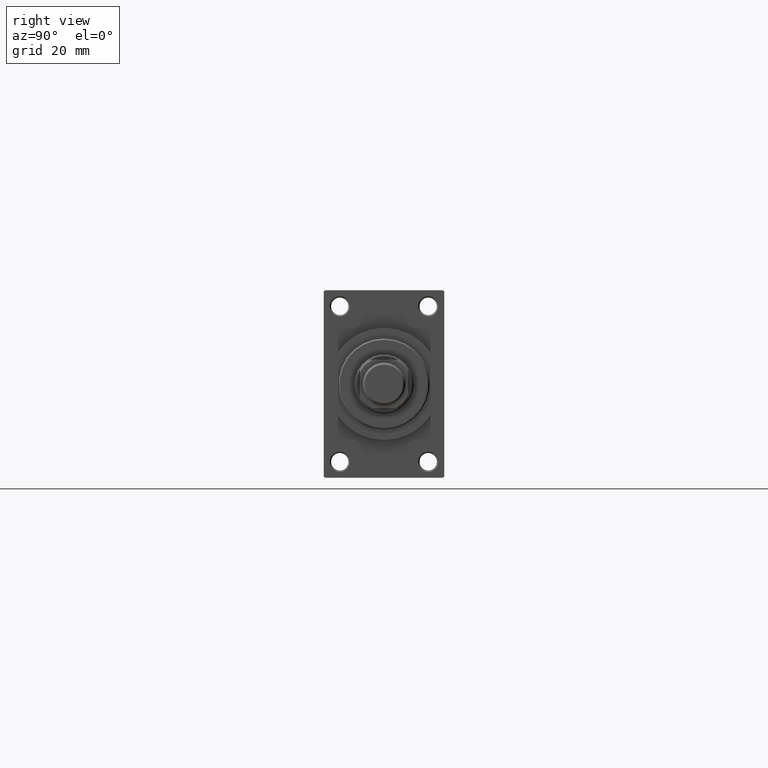
[diagram: clean part render]
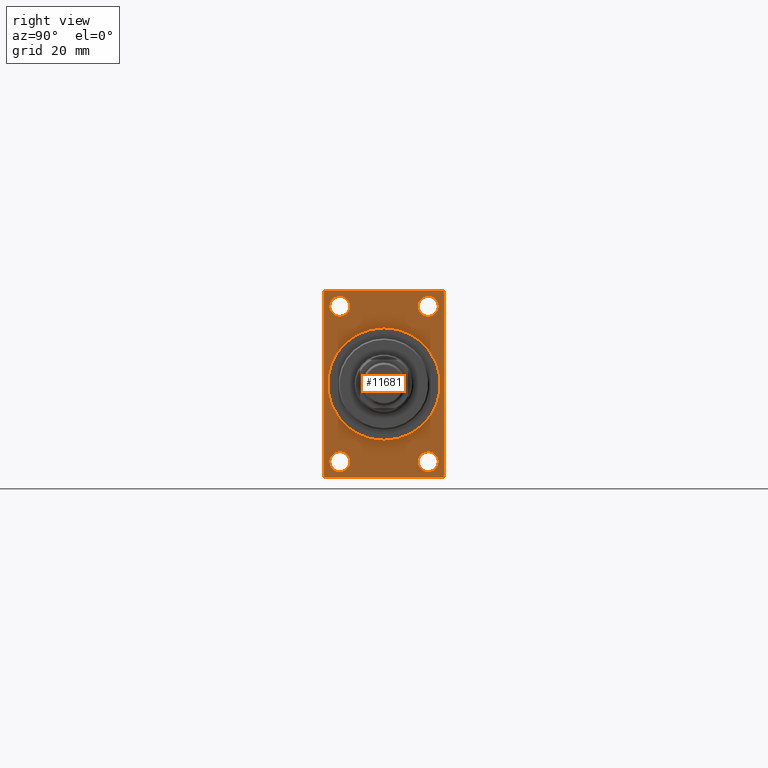
[diagram: same view with one face highlighted and labeled with its STEP entity id]
A machine part, right view. The second image highlights one B-rep face of the part: STEP entity #11681.
In plain terms, the highlighted planar face has unit normal (-1, 0, 0).
Its self-contained STEP definition (entity closure, byte-faithful):
#183 = VERTEX_POINT ( 'NONE', #20639 ) ;
#244 = AXIS2_PLACEMENT_3D ( 'NONE', #37986, #24041, #41601 ) ;
#621 = CARTESIAN_POINT ( 'NONE',  ( 193.0000000000000000, 22.49999999999999645, 35.00000000000000000 ) ) ;
#722 = CARTESIAN_POINT ( 'NONE',  ( 193.0000000000000000, -22.50000000000000355, -34.50000000000000000 ) ) ;
#827 = VERTEX_POINT ( 'NONE', #11973 ) ;
#1108 = ORIENTED_EDGE ( 'NONE', *, *, #24582, .T. ) ;
#1174 = VERTEX_POINT ( 'NONE', #4451 ) ;
#1270 = EDGE_CURVE ( 'NONE', #2197, #7240, #36684, .T. ) ;
#1583 = AXIS2_PLACEMENT_3D ( 'NONE', #6941, #44022, #20526 ) ;
#2116 = ORIENTED_EDGE ( 'NONE', *, *, #31979, .T. ) ;
#2194 = FACE_BOUND ( 'NONE', #35541, .T. ) ;
#2197 = VERTEX_POINT ( 'NONE', #722 ) ;
#2651 = CARTESIAN_POINT ( 'NONE',  ( 193.0000000000000000, 16.50000000000000000, 29.00000000000000355 ) ) ;
#2652 = ORIENTED_EDGE ( 'NONE', *, *, #27815, .F. ) ;
#2774 = CIRCLE ( 'NONE', #8164, 21.00000000000000000 ) ;
#3081 = EDGE_CURVE ( 'NONE', #183, #36428, #20246, .T. ) ;
#3083 = EDGE_CURVE ( 'NONE', #33290, #47368, #39788, .T. ) ;
#3538 = EDGE_CURVE ( 'NONE', #827, #1174, #3761, .T. ) ;
#3630 = AXIS2_PLACEMENT_3D ( 'NONE', #5527, #15888, #34915 ) ;
#3641 = CARTESIAN_POINT ( 'NONE',  ( 193.0000000000000000, 16.50000000000000000, 29.00000000000000355 ) ) ;
#3699 = AXIS2_PLACEMENT_3D ( 'NONE', #2651, #9876, #24591 ) ;
#3761 = LINE ( 'NONE', #621, #31360 ) ;
#3772 = ORIENTED_EDGE ( 'NONE', *, *, #4887, .T. ) ;
#4451 = CARTESIAN_POINT ( 'NONE',  ( 193.0000000000000000, 22.49999999999999645, -34.50000000000000000 ) ) ;
#4527 = DIRECTION ( 'NONE',  ( 0.000000000000000000, 0.000000000000000000, 1.000000000000000000 ) ) ;
#4567 = EDGE_CURVE ( 'NONE', #827, #183, #26582, .T. ) ;
#4854 = CARTESIAN_POINT ( 'NONE',  ( 193.0000000000000000, -16.50000000000000000, 25.24999999999992539 ) ) ;
#4887 = EDGE_CURVE ( 'NONE', #36428, #16822, #13195, .T. ) ;
#5334 = VERTEX_POINT ( 'NONE', #36948 ) ;
#5527 = CARTESIAN_POINT ( 'NONE',  ( 193.0000000000000000, 16.50000000000000000, -28.99999999999999289 ) ) ;
#5771 = EDGE_CURVE ( 'NONE', #25470, #41553, #13696, .T. ) ;
#5807 = FACE_BOUND ( 'NONE', #5971, .T. ) ;
#5897 = AXIS2_PLACEMENT_3D ( 'NONE', #38127, #33828, #15518 ) ;
#5971 = EDGE_LOOP ( 'NONE', ( #42836, #14609 ) ) ;
#6247 = VERTEX_POINT ( 'NONE', #8277 ) ;
#6779 = DIRECTION ( 'NONE',  ( -1.000000000000000000, -0.000000000000000000, -0.000000000000000000 ) ) ;
#6941 = CARTESIAN_POINT ( 'NONE',  ( 193.0000000000000000, 0.000000000000000000, 0.000000000000000000 ) ) ;
#7163 = CARTESIAN_POINT ( 'NONE',  ( 193.0000000000000000, 22.49999999999999645, -35.00000000000000000 ) ) ;
#7182 = FACE_BOUND ( 'NONE', #46629, .T. ) ;
#7216 = AXIS2_PLACEMENT_3D ( 'NONE', #10643, #6779, #28966 ) ;
#7240 = VERTEX_POINT ( 'NONE', #18315 ) ;
#8164 = AXIS2_PLACEMENT_3D ( 'NONE', #43391, #32100, #46753 ) ;
#8277 = CARTESIAN_POINT ( 'NONE',  ( 193.0000000000000000, 21.99999999999999645, -35.00000000000000000 ) ) ;
#8474 = EDGE_CURVE ( 'NONE', #36938, #31401, #47636, .T. ) ;
#9445 = CARTESIAN_POINT ( 'NONE',  ( 193.0000000000000000, 16.50000000000000000, 25.24999999999991829 ) ) ;
#9642 = CARTESIAN_POINT ( 'NONE',  ( 193.0000000000000000, -16.50000000000000000, -25.24999999999990763 ) ) ;
#9876 = DIRECTION ( 'NONE',  ( -1.000000000000000000, -0.000000000000000000, -0.000000000000000000 ) ) ;
#10052 = CIRCLE ( 'NONE', #34673, 3.750000000000090150 ) ;
#10093 = AXIS2_PLACEMENT_3D ( 'NONE', #3641, #32799, #39299 ) ;
#10529 = VERTEX_POINT ( 'NONE', #9642 ) ;
#10618 = CARTESIAN_POINT ( 'NONE',  ( 193.0000000000000000, -22.50000000000000355, 35.00000000000000000 ) ) ;
#10641 = VECTOR ( 'NONE', #31522, 1000.000000000000114 ) ;
#10643 = CARTESIAN_POINT ( 'NONE',  ( 193.0000000000000000, -16.50000000000000000, -28.99999999999999289 ) ) ;
#11681 = ADVANCED_FACE ( 'NONE', ( #7182, #36325, #2194, #5807, #47610, #33204 ), #25259, .F. ) ;
#11726 = VERTEX_POINT ( 'NONE', #39930 ) ;
#11917 = ORIENTED_EDGE ( 'NONE', *, *, #46903, .T. ) ;
#11973 = CARTESIAN_POINT ( 'NONE',  ( 193.0000000000000000, 22.49999999999999645, 34.50000000000000000 ) ) ;
#12075 = VECTOR ( 'NONE', #23837, 1000.000000000000000 ) ;
#12309 = VECTOR ( 'NONE', #36391, 1000.000000000000000 ) ;
#12694 = DIRECTION ( 'NONE',  ( -1.000000000000000000, -0.000000000000000000, -0.000000000000000000 ) ) ;
#13195 = LINE ( 'NONE', #41836, #10641 ) ;
#13588 = EDGE_CURVE ( 'NONE', #16822, #2197, #43595, .T. ) ;
#13696 = CIRCLE ( 'NONE', #3699, 3.750000000000086597 ) ;
#14609 = ORIENTED_EDGE ( 'NONE', *, *, #45432, .T. ) ;
#15090 = LINE ( 'NONE', #7163, #36229 ) ;
#15310 = DIRECTION ( 'NONE',  ( 0.000000000000000000, 0.000000000000000000, -1.000000000000000000 ) ) ;
#15518 = DIRECTION ( 'NONE',  ( 0.000000000000000000, 0.000000000000000000, 1.000000000000000000 ) ) ;
#15645 = ORIENTED_EDGE ( 'NONE', *, *, #3081, .T. ) ;
#15888 = DIRECTION ( 'NONE',  ( -1.000000000000000000, -0.000000000000000000, -0.000000000000000000 ) ) ;
#16203 = DIRECTION ( 'NONE',  ( 0.000000000000000000, -0.7071067811865474617, 0.7071067811865474617 ) ) ;
#16311 = EDGE_CURVE ( 'NONE', #6247, #1174, #41957, .T. ) ;
#16339 = ORIENTED_EDGE ( 'NONE', *, *, #3083, .T. ) ;
#16366 = CARTESIAN_POINT ( 'NONE',  ( 193.0000000000000000, 0.000000000000000000, 21.00000000000000000 ) ) ;
#16376 = EDGE_LOOP ( 'NONE', ( #24583, #2116 ) ) ;
#16610 = VECTOR ( 'NONE', #24680, 1000.000000000000114 ) ;
#16611 = EDGE_CURVE ( 'NONE', #6247, #7240, #15090, .T. ) ;
#16822 = VERTEX_POINT ( 'NONE', #32162 ) ;
#17504 = ORIENTED_EDGE ( 'NONE', *, *, #4567, .T. ) ;
#18093 = CARTESIAN_POINT ( 'NONE',  ( 193.0000000000000000, -16.50000000000000000, 29.00000000000000711 ) ) ;
#18315 = CARTESIAN_POINT ( 'NONE',  ( 193.0000000000000000, -21.99999999999998934, -35.00000000000000000 ) ) ;
#20246 = LINE ( 'NONE', #45716, #12075 ) ;
#20401 = CIRCLE ( 'NONE', #25763, 3.750000000000083045 ) ;
#20526 = DIRECTION ( 'NONE',  ( -0.000000000000000000, 0.000000000000000000, 1.000000000000000000 ) ) ;
#20639 = CARTESIAN_POINT ( 'NONE',  ( 193.0000000000000000, 21.99999999999999645, 35.00000000000000000 ) ) ;
#21311 = EDGE_CURVE ( 'NONE', #40450, #11726, #35619, .T. ) ;
#22008 = CARTESIAN_POINT ( 'NONE',  ( 193.0000000000000000, 16.50000000000000000, 32.75000000000009237 ) ) ;
#22039 = EDGE_CURVE ( 'NONE', #5334, #10529, #40263, .T. ) ;
#23837 = DIRECTION ( 'NONE',  ( 0.000000000000000000, -1.000000000000000000, 0.000000000000000000 ) ) ;
#24041 = DIRECTION ( 'NONE',  ( 1.000000000000000000, 0.000000000000000000, 0.000000000000000000 ) ) ;
#24083 = ORIENTED_EDGE ( 'NONE', *, *, #8474, .T. ) ;
#24582 = EDGE_CURVE ( 'NONE', #31401, #36938, #20401, .T. ) ;
#24583 = ORIENTED_EDGE ( 'NONE', *, *, #22039, .T. ) ;
#24591 = DIRECTION ( 'NONE',  ( 0.000000000000000000, 0.000000000000000000, 1.000000000000000000 ) ) ;
#24680 = DIRECTION ( 'NONE',  ( 0.000000000000000000, 0.7071067811865474617, -0.7071067811865474617 ) ) ;
#25259 = PLANE ( 'NONE',  #1583 ) ;
#25470 = VERTEX_POINT ( 'NONE', #9445 ) ;
#25718 = DIRECTION ( 'NONE',  ( 0.000000000000000000, -1.000000000000000000, 0.000000000000000000 ) ) ;
#25763 = AXIS2_PLACEMENT_3D ( 'NONE', #34378, #12694, #4527 ) ;
#26582 = LINE ( 'NONE', #27058, #37518 ) ;
#26912 = CIRCLE ( 'NONE', #10093, 3.750000000000086597 ) ;
#26992 = ORIENTED_EDGE ( 'NONE', *, *, #16311, .T. ) ;
#27058 = CARTESIAN_POINT ( 'NONE',  ( 193.0000000000000000, 21.99999999999999645, 35.00000000000000000 ) ) ;
#27071 = ORIENTED_EDGE ( 'NONE', *, *, #21311, .F. ) ;
#27815 = EDGE_CURVE ( 'NONE', #11726, #40450, #2774, .T. ) ;
#27854 = CARTESIAN_POINT ( 'NONE',  ( 193.0000000000000000, 16.50000000000000000, -28.99999999999999289 ) ) ;
#28322 = DIRECTION ( 'NONE',  ( 0.000000000000000000, 0.000000000000000000, 1.000000000000000000 ) ) ;
#28590 = VECTOR ( 'NONE', #28912, 1000.000000000000114 ) ;
#28912 = DIRECTION ( 'NONE',  ( -0.000000000000000000, 0.7071067811865474617, 0.7071067811865474617 ) ) ;
#28966 = DIRECTION ( 'NONE',  ( 0.000000000000000000, 0.000000000000000000, 1.000000000000000000 ) ) ;
#29746 = CIRCLE ( 'NONE', #5897, 3.750000000000090150 ) ;
#31360 = VECTOR ( 'NONE', #15310, 1000.000000000000000 ) ;
#31401 = VERTEX_POINT ( 'NONE', #4854 ) ;
#31522 = DIRECTION ( 'NONE',  ( -0.000000000000000000, -0.7071067811865474617, -0.7071067811865474617 ) ) ;
#31979 = EDGE_CURVE ( 'NONE', #10529, #5334, #29746, .T. ) ;
#32100 = DIRECTION ( 'NONE',  ( 1.000000000000000000, 0.000000000000000000, 0.000000000000000000 ) ) ;
#32162 = CARTESIAN_POINT ( 'NONE',  ( 193.0000000000000000, -22.50000000000000355, 34.50000000000000000 ) ) ;
#32332 = ORIENTED_EDGE ( 'NONE', *, *, #3538, .F. ) ;
#32799 = DIRECTION ( 'NONE',  ( -1.000000000000000000, -0.000000000000000000, -0.000000000000000000 ) ) ;
#32970 = CARTESIAN_POINT ( 'NONE',  ( 193.0000000000000000, -16.50000000000000000, 32.75000000000009237 ) ) ;
#33204 = FACE_OUTER_BOUND ( 'NONE', #33360, .T. ) ;
#33290 = VERTEX_POINT ( 'NONE', #45108 ) ;
#33360 = EDGE_LOOP ( 'NONE', ( #38422, #36499, #35301, #26992, #32332, #17504, #15645, #3772 ) ) ;
#33828 = DIRECTION ( 'NONE',  ( -1.000000000000000000, -0.000000000000000000, -0.000000000000000000 ) ) ;
#34378 = CARTESIAN_POINT ( 'NONE',  ( 193.0000000000000000, -16.50000000000000000, 29.00000000000000711 ) ) ;
#34673 = AXIS2_PLACEMENT_3D ( 'NONE', #27854, #42510, #28322 ) ;
#34915 = DIRECTION ( 'NONE',  ( 0.000000000000000000, 0.000000000000000000, 1.000000000000000000 ) ) ;
#35301 = ORIENTED_EDGE ( 'NONE', *, *, #16611, .F. ) ;
#35541 = EDGE_LOOP ( 'NONE', ( #11917, #16339 ) ) ;
#35619 = CIRCLE ( 'NONE', #244, 21.00000000000000000 ) ;
#36229 = VECTOR ( 'NONE', #25718, 1000.000000000000000 ) ;
#36325 = FACE_BOUND ( 'NONE', #16376, .T. ) ;
#36391 = DIRECTION ( 'NONE',  ( 0.000000000000000000, 0.000000000000000000, -1.000000000000000000 ) ) ;
#36428 = VERTEX_POINT ( 'NONE', #46490 ) ;
#36499 = ORIENTED_EDGE ( 'NONE', *, *, #1270, .T. ) ;
#36684 = LINE ( 'NONE', #43421, #16610 ) ;
#36938 = VERTEX_POINT ( 'NONE', #32970 ) ;
#36948 = CARTESIAN_POINT ( 'NONE',  ( 193.0000000000000000, -16.50000000000000000, -32.75000000000008527 ) ) ;
#37518 = VECTOR ( 'NONE', #16203, 1000.000000000000114 ) ;
#37986 = CARTESIAN_POINT ( 'NONE',  ( 193.0000000000000000, 0.000000000000000000, 0.000000000000000000 ) ) ;
#38127 = CARTESIAN_POINT ( 'NONE',  ( 193.0000000000000000, -16.50000000000000000, -28.99999999999999289 ) ) ;
#38422 = ORIENTED_EDGE ( 'NONE', *, *, #13588, .T. ) ;
#38828 = CARTESIAN_POINT ( 'NONE',  ( 193.0000000000000000, 22.49999999999999645, -34.50000000000000000 ) ) ;
#39166 = AXIS2_PLACEMENT_3D ( 'NONE', #18093, #47442, #44087 ) ;
#39299 = DIRECTION ( 'NONE',  ( 0.000000000000000000, 0.000000000000000000, 1.000000000000000000 ) ) ;
#39788 = CIRCLE ( 'NONE', #3630, 3.750000000000090150 ) ;
#39930 = CARTESIAN_POINT ( 'NONE',  ( 193.0000000000000000, 2.571758278209441661E-15, -21.00000000000000000 ) ) ;
#40263 = CIRCLE ( 'NONE', #7216, 3.750000000000090150 ) ;
#40450 = VERTEX_POINT ( 'NONE', #16366 ) ;
#41553 = VERTEX_POINT ( 'NONE', #22008 ) ;
#41601 = DIRECTION ( 'NONE',  ( 0.000000000000000000, 0.000000000000000000, -1.000000000000000000 ) ) ;
#41836 = CARTESIAN_POINT ( 'NONE',  ( 193.0000000000000000, -22.50000000000000355, 34.50000000000000000 ) ) ;
#41957 = LINE ( 'NONE', #38828, #28590 ) ;
#42139 = EDGE_LOOP ( 'NONE', ( #27071, #2652 ) ) ;
#42510 = DIRECTION ( 'NONE',  ( -1.000000000000000000, -0.000000000000000000, -0.000000000000000000 ) ) ;
#42836 = ORIENTED_EDGE ( 'NONE', *, *, #5771, .T. ) ;
#43391 = CARTESIAN_POINT ( 'NONE',  ( 193.0000000000000000, 0.000000000000000000, 0.000000000000000000 ) ) ;
#43421 = CARTESIAN_POINT ( 'NONE',  ( 193.0000000000000000, -22.00000000000000355, -35.00000000000000000 ) ) ;
#43595 = LINE ( 'NONE', #10618, #12309 ) ;
#44022 = DIRECTION ( 'NONE',  ( -1.000000000000000000, 0.000000000000000000, -0.000000000000000000 ) ) ;
#44087 = DIRECTION ( 'NONE',  ( 0.000000000000000000, 0.000000000000000000, 1.000000000000000000 ) ) ;
#45108 = CARTESIAN_POINT ( 'NONE',  ( 193.0000000000000000, 16.50000000000000000, -25.24999999999990763 ) ) ;
#45432 = EDGE_CURVE ( 'NONE', #41553, #25470, #26912, .T. ) ;
#45693 = CARTESIAN_POINT ( 'NONE',  ( 193.0000000000000000, 16.50000000000000000, -32.75000000000008527 ) ) ;
#45716 = CARTESIAN_POINT ( 'NONE',  ( 193.0000000000000000, 22.49999999999999645, 35.00000000000000000 ) ) ;
#46490 = CARTESIAN_POINT ( 'NONE',  ( 193.0000000000000000, -21.99999999999998934, 35.00000000000000000 ) ) ;
#46629 = EDGE_LOOP ( 'NONE', ( #1108, #24083 ) ) ;
#46753 = DIRECTION ( 'NONE',  ( 0.000000000000000000, 0.000000000000000000, -1.000000000000000000 ) ) ;
#46903 = EDGE_CURVE ( 'NONE', #47368, #33290, #10052, .T. ) ;
#47368 = VERTEX_POINT ( 'NONE', #45693 ) ;
#47442 = DIRECTION ( 'NONE',  ( -1.000000000000000000, -0.000000000000000000, -0.000000000000000000 ) ) ;
#47610 = FACE_BOUND ( 'NONE', #42139, .T. ) ;
#47636 = CIRCLE ( 'NONE', #39166, 3.750000000000083045 ) ;